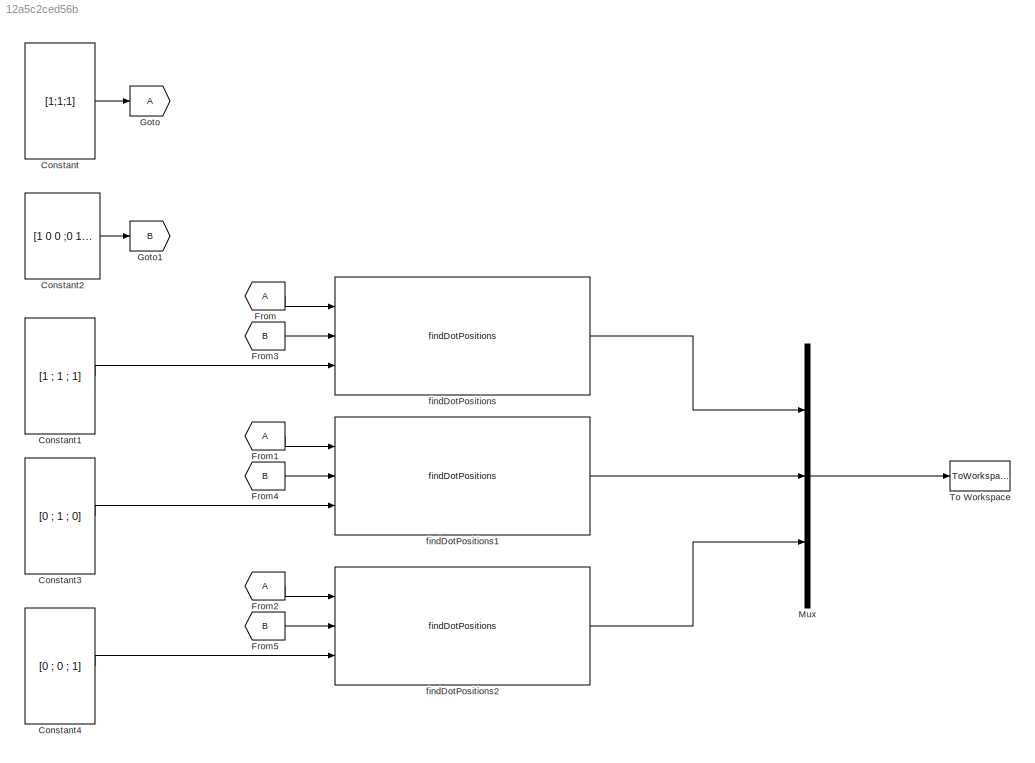
MODEL slx_12a5c2ced56b
KIND model
CONFIG AbsTol = auto
CONFIG EnableMultiTasking = off
CONFIG FixedStep = auto
CONFIG MaxStep = auto
CONFIG MinStep = auto
CONFIG RelTol = 1e-3
CONFIG SampleTimeConstraint = Unconstrained
CONFIG Solver = VariableStepAuto
CONFIG SolverName = VariableStepAuto
CONFIG StartTime = 0.0
CONFIG StopTime = 10.0
BLOCK [Constant] Constant
  Value = [1;1;1]
BLOCK [Constant] Constant1
  Value = [1 ; 1 ; 1]
BLOCK [Constant] Constant2
  Value = [1 0 0 ;0 1 0 ;0 0 1]
BLOCK [Constant] Constant3
  Value = [0 ; 1 ; 0]
BLOCK [Constant] Constant4
  Value = [0 ; 0 ; 1]
BLOCK [From] From
BLOCK [From] From1
BLOCK [From] From2
BLOCK [From] From3
  GotoTag = B
BLOCK [From] From4
  GotoTag = B
BLOCK [From] From5
  GotoTag = B
BLOCK [Goto] Goto
BLOCK [Goto] Goto1
  GotoTag = B
BLOCK [Mux] Mux
  DisplayOption = bar
  Inputs = 3
  Ports = [3, 1]
BLOCK [ToWorkspace] To Workspace
  FixptAsFi = on
  MaxDataPoints = inf
  Ports = [1]
  SampleTime = -1
  Save2DSignal = 3-D array (concatenate along third dimension)
  SaveFormat = Timeseries
  VariableName = simout
BLOCK [Reference] findDotPositions  REF=findDotPositions_ul/findDotPositions
  Ports = [3, 1]
  SourceBlock = findDotPositions_ul/findDotPositions
  SourceType = SubSystem
BLOCK [Reference] findDotPositions1  REF=findDotPositions_ul/findDotPositions
  Ports = [3, 1]
  SourceBlock = findDotPositions_ul/findDotPositions
  SourceType = SubSystem
BLOCK [Reference] findDotPositions2  REF=findDotPositions_ul/findDotPositions
  Ports = [3, 1]
  SourceBlock = findDotPositions_ul/findDotPositions
  SourceType = SubSystem
LINE Constant1:1 -> findDotPositions:3
LINE Constant2:1 -> Goto1:1
LINE Constant3:1 -> findDotPositions1:3
LINE Constant4:1 -> findDotPositions2:3
LINE Constant:1 -> Goto:1
LINE From1:1 -> findDotPositions1:1
LINE From2:1 -> findDotPositions2:1
LINE From3:1 -> findDotPositions:2
LINE From4:1 -> findDotPositions1:2
LINE From5:1 -> findDotPositions2:2
LINE From:1 -> findDotPositions:1
LINE Mux:1 -> To Workspace:1
LINE findDotPositions1:1 -> Mux:2
LINE findDotPositions2:1 -> Mux:3
LINE findDotPositions:1 -> Mux:1
